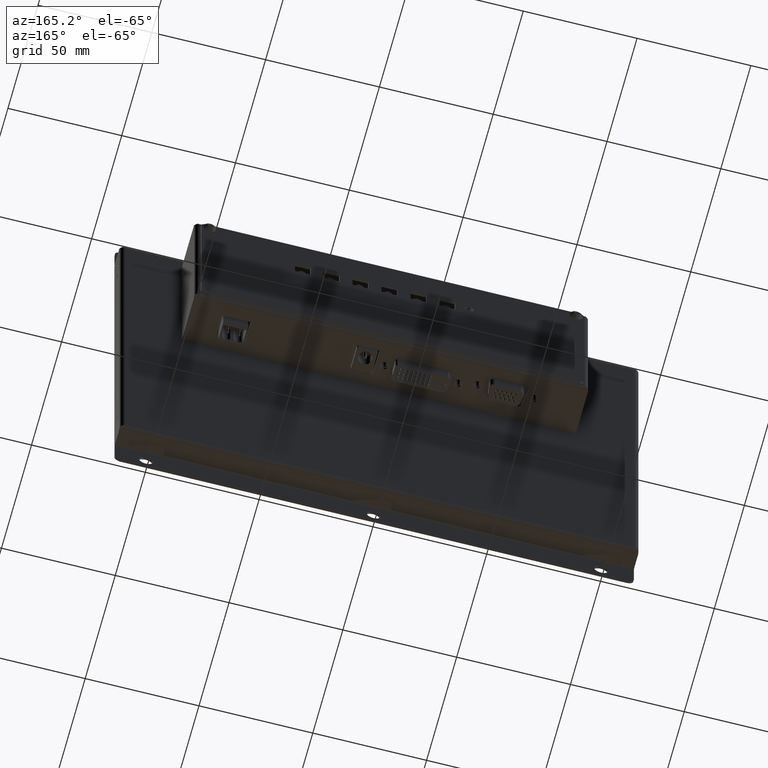
[diagram: clean part render]
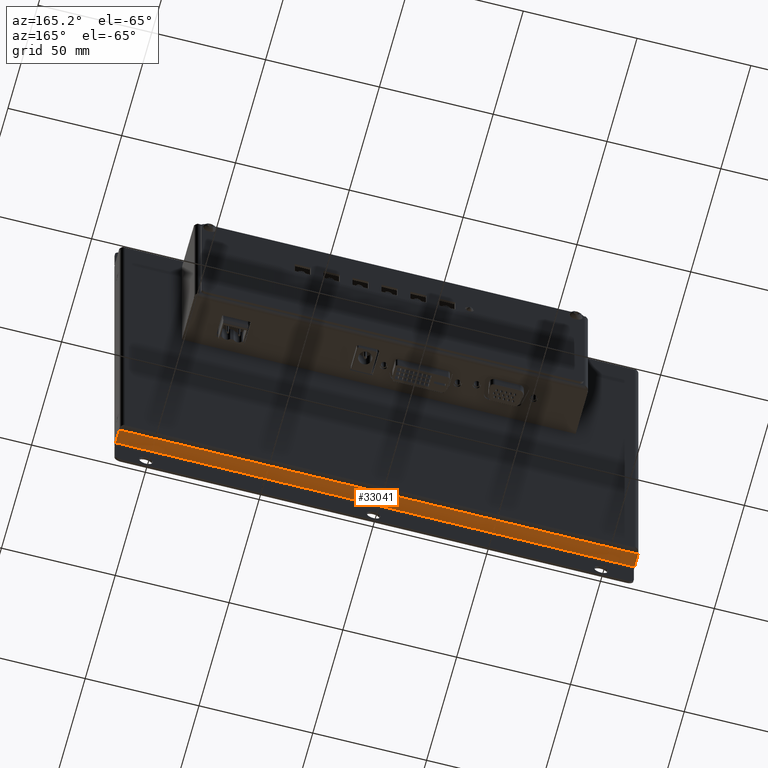
[diagram: same view with one face highlighted and labeled with its STEP entity id]
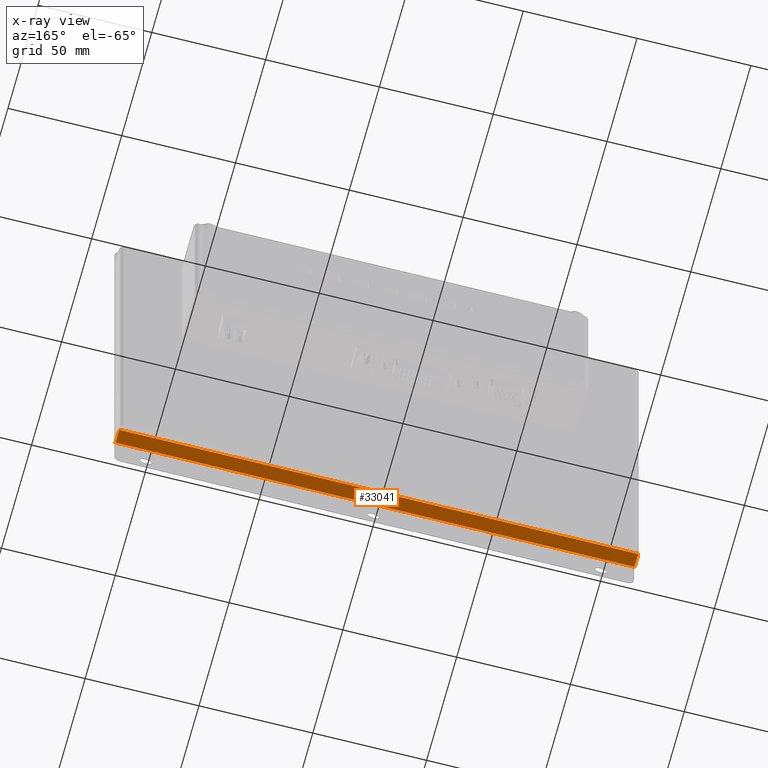
[diagram: x-ray of the same camera — body ghosted, the highlighted face saturated]
A machine part, auxiliary view. The second image highlights one B-rep face of the part: STEP entity #33041.
The next image is the same camera in x-ray: the body ghosted, the highlighted face saturated — about 0% of this face is hidden behind the body in this view.
In plain terms, the highlighted planar face has unit normal (0, -0, -1).
Its self-contained STEP definition (entity closure, byte-faithful):
#2887=FACE_OUTER_BOUND('',#4785,.T.);
#4785=EDGE_LOOP('',(#23119,#23120,#23121,#23122));
#7046=LINE('',#48283,#10267);
#7047=LINE('',#48286,#10268);
#7048=LINE('',#48288,#10269);
#7049=LINE('',#48289,#10270);
#10267=VECTOR('',#39067,10.);
#10268=VECTOR('',#39070,10.);
#10269=VECTOR('',#39071,10.);
#10270=VECTOR('',#39072,10.);
#14730=VERTEX_POINT('',#48272);
#14731=VERTEX_POINT('',#48276);
#14732=VERTEX_POINT('',#48285);
#14733=VERTEX_POINT('',#48287);
#18009=EDGE_CURVE('',#14730,#14731,#7046,.T.);
#18010=EDGE_CURVE('',#14732,#14731,#7047,.T.);
#18011=EDGE_CURVE('',#14732,#14733,#7048,.T.);
#18012=EDGE_CURVE('',#14733,#14730,#7049,.T.);
#23119=ORIENTED_EDGE('',*,*,#18009,.T.);
#23120=ORIENTED_EDGE('',*,*,#18010,.F.);
#23121=ORIENTED_EDGE('',*,*,#18011,.T.);
#23122=ORIENTED_EDGE('',*,*,#18012,.T.);
#31826=PLANE('',#35501);
#33041=ADVANCED_FACE('',(#2887),#31826,.T.);
#35501=AXIS2_PLACEMENT_3D('',#48284,#39068,#39069);
#39067=DIRECTION('',(1.,1.56511390164708E-16,7.66736428482517E-34));
#39068=DIRECTION('center_axis',(1.56511390164708E-16,-1.,-1.33830976236117E-15));
#39069=DIRECTION('ref_axis',(1.,1.56511390164708E-16,-1.57199720300907E-16));
#39070=DIRECTION('',(-8.66515531414756E-15,0.,-1.));
#39071=DIRECTION('',(-1.,-1.56511390164708E-16,1.18057188030006E-33));
#39072=DIRECTION('',(-6.49886648561064E-15,0.,-1.));
#48272=CARTESIAN_POINT('',(-114.,-91.,-7.2));
#48276=CARTESIAN_POINT('',(114.,-91.,-7.2));
#48283=CARTESIAN_POINT('',(57.,-91.,-7.2));
#48284=CARTESIAN_POINT('Origin',(3.10031672228012E-15,-91.,-3.96902664470767));
#48285=CARTESIAN_POINT('',(114.,-91.,-1.00000000000003));
#48286=CARTESIAN_POINT('',(114.,-91.,-0.999999999999996));
#48287=CARTESIAN_POINT('',(-114.,-91.,-0.999999999999992));
#48288=CARTESIAN_POINT('',(-7.17461884799842E-15,-91.,-0.999999999999996));
#48289=CARTESIAN_POINT('',(-114.,-91.,-0.999999999999962));